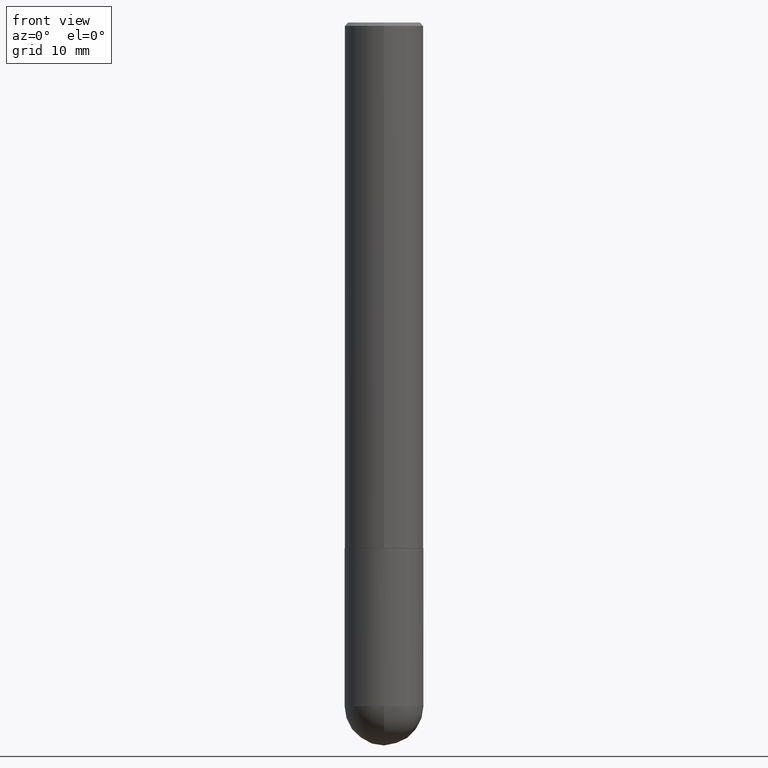
[diagram: clean part render]
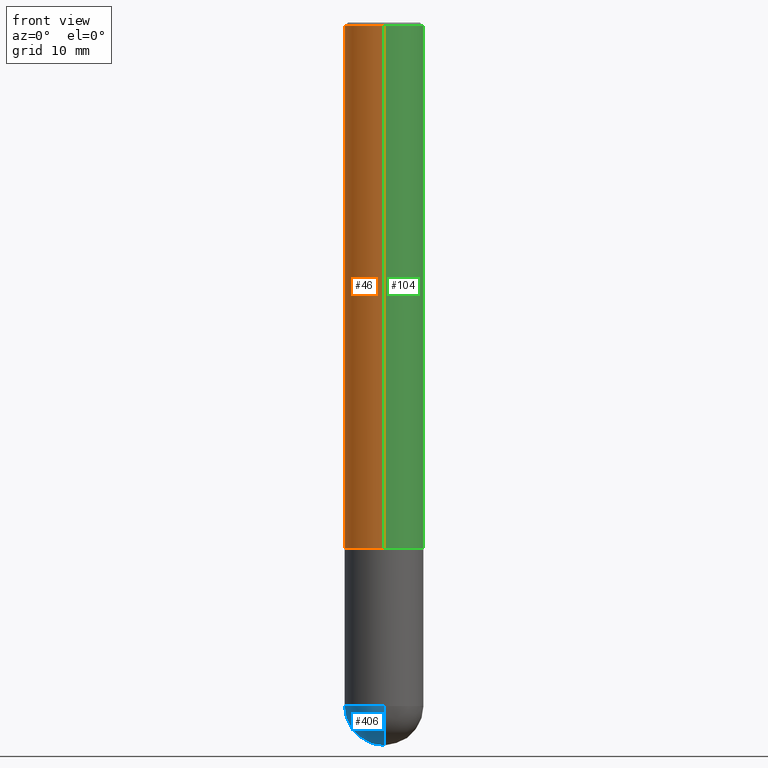
[diagram: same view with three faces highlighted in distinct colors, each labeled with its STEP entity id]
A machine part, front view with three faces highlighted in distinct colors.
Their STEP definitions:

[orange] entity #46 — the highlighted cylindrical surface (partial cylindrical patch) has radius 5.9995 mm, axis along (-0, 0, 1).
#25 = DIRECTION ( 'NONE',  ( -2.446209613660721864E-29, 3.490420460373964582E-15, 1.000000000000000000 ) ) ;
#38 = EDGE_CURVE ( 'NONE', #79, #396, #152, .T. ) ;
#39 = CYLINDRICAL_SURFACE ( 'NONE', #85, 0.2362000000000001598 ) ;
#43 = VECTOR ( 'NONE', #408, 39.37007874015748143 ) ;
#46 = ADVANCED_FACE ( 'NONE', ( #221 ), #39, .T. ) ;
#60 = ORIENTED_EDGE ( 'NONE', *, *, #369, .T. ) ;
#62 = DIRECTION ( 'NONE',  ( -6.982962677686265922E-15, -1.000000000000000000, 3.487819265831412533E-15 ) ) ;
#69 = DIRECTION ( 'NONE',  ( -6.982962677686265922E-15, -1.000000000000000000, 3.490420460373964977E-15 ) ) ;
#79 = VERTEX_POINT ( 'NONE', #93 ) ;
#85 = AXIS2_PLACEMENT_3D ( 'NONE', #96, #195, #69 ) ;
#87 = EDGE_LOOP ( 'NONE', ( #283, #232, #60, #333 ) ) ;
#93 = CARTESIAN_POINT ( 'NONE',  ( 1.649375784469495934E-15, 0.2361999999999998545, -0.02000000000000087472 ) ) ;
#96 = CARTESIAN_POINT ( 'NONE',  ( 0.000000000000000000, 0.000000000000000000, 0.000000000000000000 ) ) ;
#107 = DIRECTION ( 'NONE',  ( -2.446209613660721864E-29, 3.490420460373964582E-15, 1.000000000000000000 ) ) ;
#110 = CARTESIAN_POINT ( 'NONE',  ( 7.702135589572149804E-29, -1.098993786153346755E-14, -3.148600000000000509 ) ) ;
#152 = CIRCLE ( 'NONE', #372, 0.2361999999999999378 ) ;
#156 = VERTEX_POINT ( 'NONE', #286 ) ;
#183 = AXIS2_PLACEMENT_3D ( 'NONE', #110, #107, #206 ) ;
#195 = DIRECTION ( 'NONE',  ( -2.446209613660721864E-29, 3.490420460373964582E-15, 1.000000000000000000 ) ) ;
#204 = LINE ( 'NONE', #209, #43 ) ;
#206 = DIRECTION ( 'NONE',  ( -6.982962677686265922E-15, -1.000000000000000000, 4.626330217890361448E-15 ) ) ;
#209 = CARTESIAN_POINT ( 'NONE',  ( 1.678301941865357577E-15, 0.2362000000000001598, -8.244373127403310428E-16 ) ) ;
#219 = VERTEX_POINT ( 'NONE', #365 ) ;
#221 = FACE_OUTER_BOUND ( 'NONE', #87, .T. ) ;
#232 = ORIENTED_EDGE ( 'NONE', *, *, #392, .T. ) ;
#233 = LINE ( 'NONE', #265, #382 ) ;
#265 = CARTESIAN_POINT ( 'NONE',  ( -1.649375784469497117E-15, -0.2362000000000001598, 8.244373127403310428E-16 ) ) ;
#282 = CARTESIAN_POINT ( 'NONE',  ( 4.892419227321456446E-31, -6.980840920747946766E-17, -0.02000000000000005246 ) ) ;
#283 = ORIENTED_EDGE ( 'NONE', *, *, #296, .F. ) ;
#286 = CARTESIAN_POINT ( 'NONE',  ( 1.678301941865397612E-15, 0.2361999999999894462, -3.148600000000001398 ) ) ;
#295 = DIRECTION ( 'NONE',  ( -2.446209613660722145E-29, 3.490420460373964582E-15, 1.000000000000000000 ) ) ;
#296 = EDGE_CURVE ( 'NONE', #156, #79, #204, .T. ) ;
#297 = CARTESIAN_POINT ( 'NONE',  ( -1.620449627073634487E-15, -0.2361999999999999933, -0.01999999999999922673 ) ) ;
#326 = CIRCLE ( 'NONE', #183, 0.2362000000000004096 ) ;
#333 = ORIENTED_EDGE ( 'NONE', *, *, #38, .F. ) ;
#365 = CARTESIAN_POINT ( 'NONE',  ( -1.649375784469421978E-15, -0.2362000000000114008, -3.148599999999999177 ) ) ;
#369 = EDGE_CURVE ( 'NONE', #219, #396, #233, .T. ) ;
#372 = AXIS2_PLACEMENT_3D ( 'NONE', #282, #25, #62 ) ;
#382 = VECTOR ( 'NONE', #295, 39.37007874015748143 ) ;
#392 = EDGE_CURVE ( 'NONE', #156, #219, #326, .T. ) ;
#396 = VERTEX_POINT ( 'NONE', #297 ) ;
#408 = DIRECTION ( 'NONE',  ( -2.446209613660722145E-29, 3.490420460373964582E-15, 1.000000000000000000 ) ) ;

[blue] entity #406 — the highlighted spherical surface has radius 5.9995 mm.
#3 = CIRCLE ( 'NONE', #91, 0.2362000000000002709 ) ;
#7 = CARTESIAN_POINT ( 'NONE',  ( 1.026957149490729443E-28, -1.558027752357013406E-14, -4.330700000000000216 ) ) ;
#30 = DIRECTION ( 'NONE',  ( 1.000000000000000000, -6.982962677686265133E-15, 0.000000000000000000 ) ) ;
#32 = ORIENTED_EDGE ( 'NONE', *, *, #94, .F. ) ;
#91 = AXIS2_PLACEMENT_3D ( 'NONE', #328, #259, #111 ) ;
#94 = EDGE_CURVE ( 'NONE', #178, #112, #208, .T. ) ;
#99 = EDGE_CURVE ( 'NONE', #112, #215, #182, .T. ) ;
#100 = AXIS2_PLACEMENT_3D ( 'NONE', #235, #261, #320 ) ;
#101 = CARTESIAN_POINT ( 'NONE',  ( 1.001297202692504215E-28, -1.429587034189326149E-14, -4.094500000000000028 ) ) ;
#111 = DIRECTION ( 'NONE',  ( -7.105427357601001070E-15, -1.000000000000000000, 0.000000000000000000 ) ) ;
#112 = VERTEX_POINT ( 'NONE', #166 ) ;
#131 = DIRECTION ( 'NONE',  ( -2.445468806185136597E-29, 3.491481338843145583E-15, 1.000000000000000000 ) ) ;
#149 = FACE_OUTER_BOUND ( 'NONE', #391, .T. ) ;
#153 = AXIS2_PLACEMENT_3D ( 'NONE', #345, #377, #202 ) ;
#166 = CARTESIAN_POINT ( 'NONE',  ( -0.2361999999999999933, -1.096801804149146287E-14, -4.094500000000000028 ) ) ;
#178 = VERTEX_POINT ( 'NONE', #403 ) ;
#182 = CIRCLE ( 'NONE', #201, 0.2361999999999999933 ) ;
#201 = AXIS2_PLACEMENT_3D ( 'NONE', #101, #131, #314 ) ;
#202 = DIRECTION ( 'NONE',  ( 6.982962677686265922E-15, 1.000000000000000000, 0.000000000000000000 ) ) ;
#207 = ORIENTED_EDGE ( 'NONE', *, *, #363, .T. ) ;
#208 = CIRCLE ( 'NONE', #402, 0.2361999999999999933 ) ;
#215 = VERTEX_POINT ( 'NONE', #374 ) ;
#235 = CARTESIAN_POINT ( 'NONE',  ( 9.681852249011155898E-29, -1.477005271003331337E-14, -4.094500000000000028 ) ) ;
#248 = ORIENTED_EDGE ( 'NONE', *, *, #99, .F. ) ;
#259 = DIRECTION ( 'NONE',  ( -1.000000000000000000, 7.105427357601001070E-15, -4.926315508542082329E-29 ) ) ;
#261 = DIRECTION ( 'NONE',  ( -1.000000000000000000, 6.982962677686265922E-15, -4.883557194083112901E-29 ) ) ;
#285 = DIRECTION ( 'NONE',  ( -2.445468806185136597E-29, 3.491481338843145583E-15, 1.000000000000000000 ) ) ;
#314 = DIRECTION ( 'NONE',  ( 1.000000000000000000, -6.982962677686265133E-15, 0.000000000000000000 ) ) ;
#320 = DIRECTION ( 'NONE',  ( 6.982962677686265922E-15, 1.000000000000000000, -4.626330217890364603E-15 ) ) ;
#328 = CARTESIAN_POINT ( 'NONE',  ( 9.681852249011155898E-29, -1.477005271003331337E-14, -4.094500000000000028 ) ) ;
#343 = CIRCLE ( 'NONE', #153, 0.2362000000000002709 ) ;
#345 = CARTESIAN_POINT ( 'NONE',  ( 9.681852249011155898E-29, -1.477005271003331337E-14, -4.094500000000000028 ) ) ;
#363 = EDGE_CURVE ( 'NONE', #409, #215, #3, .T. ) ;
#374 = CARTESIAN_POINT ( 'NONE',  ( -1.678301941865258773E-15, -0.2362000000000146760, -4.094499999999999140 ) ) ;
#377 = DIRECTION ( 'NONE',  ( 1.000000000000000000, -6.982962677686265922E-15, 4.883557194083112340E-29 ) ) ;
#381 = SPHERICAL_SURFACE ( 'NONE', #100, 0.2362000000000002709 ) ;
#383 = EDGE_CURVE ( 'NONE', #409, #178, #343, .T. ) ;
#391 = EDGE_LOOP ( 'NONE', ( #404, #207, #248, #32 ) ) ;
#400 = CARTESIAN_POINT ( 'NONE',  ( 1.001297202692504215E-28, -1.429587034189326149E-14, -4.094500000000000028 ) ) ;
#402 = AXIS2_PLACEMENT_3D ( 'NONE', #400, #285, #30 ) ;
#403 = CARTESIAN_POINT ( 'NONE',  ( 1.649375784469595330E-15, 0.2361999999999855882, -4.094500000000001805 ) ) ;
#404 = ORIENTED_EDGE ( 'NONE', *, *, #383, .F. ) ;
#406 = ADVANCED_FACE ( 'NONE', ( #149 ), #381, .T. ) ;
#409 = VERTEX_POINT ( 'NONE', #7 ) ;

[green] entity #104 — the highlighted cylindrical surface (partial cylindrical patch) has radius 5.9995 mm, axis along (-0, 0, 1).
#24 = ORIENTED_EDGE ( 'NONE', *, *, #369, .F. ) ;
#43 = VECTOR ( 'NONE', #408, 39.37007874015748143 ) ;
#45 = DIRECTION ( 'NONE',  ( -6.982962677686265922E-15, -1.000000000000000000, 4.626330217890361448E-15 ) ) ;
#48 = CIRCLE ( 'NONE', #298, 0.2361999999999999378 ) ;
#61 = DIRECTION ( 'NONE',  ( -6.982962677686265922E-15, -1.000000000000000000, 3.490420460373964977E-15 ) ) ;
#79 = VERTEX_POINT ( 'NONE', #93 ) ;
#80 = DIRECTION ( 'NONE',  ( -2.446209613660721864E-29, 3.490420460373964582E-15, 1.000000000000000000 ) ) ;
#82 = CARTESIAN_POINT ( 'NONE',  ( 7.702135589572149804E-29, -1.098993786153346755E-14, -3.148600000000000509 ) ) ;
#93 = CARTESIAN_POINT ( 'NONE',  ( 1.649375784469495934E-15, 0.2361999999999998545, -0.02000000000000087472 ) ) ;
#104 = ADVANCED_FACE ( 'NONE', ( #284 ), #226, .T. ) ;
#135 = ORIENTED_EDGE ( 'NONE', *, *, #272, .T. ) ;
#148 = EDGE_CURVE ( 'NONE', #396, #79, #48, .T. ) ;
#156 = VERTEX_POINT ( 'NONE', #286 ) ;
#204 = LINE ( 'NONE', #209, #43 ) ;
#205 = EDGE_LOOP ( 'NONE', ( #135, #249, #371, #24 ) ) ;
#209 = CARTESIAN_POINT ( 'NONE',  ( 1.678301941865357577E-15, 0.2362000000000001598, -8.244373127403310428E-16 ) ) ;
#219 = VERTEX_POINT ( 'NONE', #365 ) ;
#226 = CYLINDRICAL_SURFACE ( 'NONE', #311, 0.2362000000000001598 ) ;
#228 = DIRECTION ( 'NONE',  ( -2.446209613660721864E-29, 3.490420460373964582E-15, 1.000000000000000000 ) ) ;
#233 = LINE ( 'NONE', #265, #382 ) ;
#249 = ORIENTED_EDGE ( 'NONE', *, *, #296, .T. ) ;
#253 = CARTESIAN_POINT ( 'NONE',  ( 0.000000000000000000, 0.000000000000000000, 0.000000000000000000 ) ) ;
#265 = CARTESIAN_POINT ( 'NONE',  ( -1.649375784469497117E-15, -0.2362000000000001598, 8.244373127403310428E-16 ) ) ;
#272 = EDGE_CURVE ( 'NONE', #219, #156, #318, .T. ) ;
#284 = FACE_OUTER_BOUND ( 'NONE', #205, .T. ) ;
#286 = CARTESIAN_POINT ( 'NONE',  ( 1.678301941865397612E-15, 0.2361999999999894462, -3.148600000000001398 ) ) ;
#295 = DIRECTION ( 'NONE',  ( -2.446209613660722145E-29, 3.490420460373964582E-15, 1.000000000000000000 ) ) ;
#296 = EDGE_CURVE ( 'NONE', #156, #79, #204, .T. ) ;
#297 = CARTESIAN_POINT ( 'NONE',  ( -1.620449627073634487E-15, -0.2361999999999999933, -0.01999999999999922673 ) ) ;
#298 = AXIS2_PLACEMENT_3D ( 'NONE', #337, #228, #370 ) ;
#311 = AXIS2_PLACEMENT_3D ( 'NONE', #253, #341, #61 ) ;
#318 = CIRCLE ( 'NONE', #358, 0.2362000000000004096 ) ;
#337 = CARTESIAN_POINT ( 'NONE',  ( 4.892419227321456446E-31, -6.980840920747946766E-17, -0.02000000000000005246 ) ) ;
#341 = DIRECTION ( 'NONE',  ( -2.446209613660721864E-29, 3.490420460373964582E-15, 1.000000000000000000 ) ) ;
#358 = AXIS2_PLACEMENT_3D ( 'NONE', #82, #80, #45 ) ;
#365 = CARTESIAN_POINT ( 'NONE',  ( -1.649375784469421978E-15, -0.2362000000000114008, -3.148599999999999177 ) ) ;
#369 = EDGE_CURVE ( 'NONE', #219, #396, #233, .T. ) ;
#370 = DIRECTION ( 'NONE',  ( -6.982962677686265922E-15, -1.000000000000000000, 3.487819265831412533E-15 ) ) ;
#371 = ORIENTED_EDGE ( 'NONE', *, *, #148, .F. ) ;
#382 = VECTOR ( 'NONE', #295, 39.37007874015748143 ) ;
#396 = VERTEX_POINT ( 'NONE', #297 ) ;
#408 = DIRECTION ( 'NONE',  ( -2.446209613660722145E-29, 3.490420460373964582E-15, 1.000000000000000000 ) ) ;